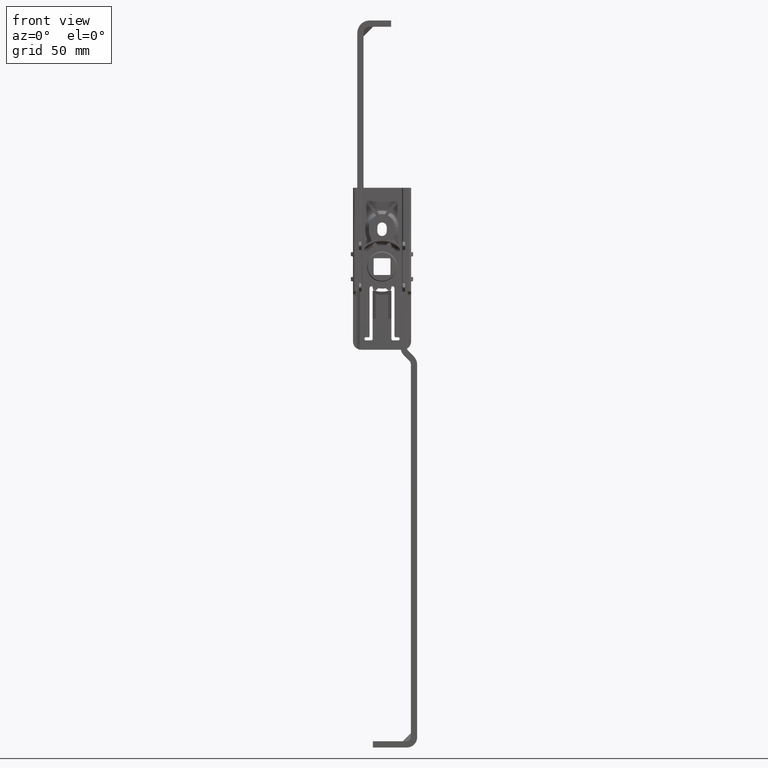
[diagram: clean part render]
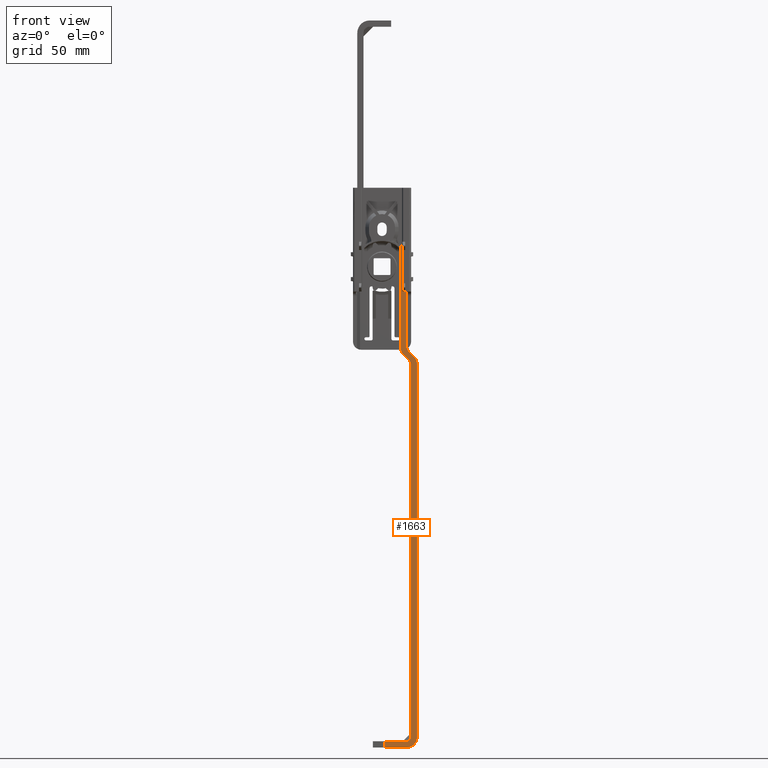
[diagram: same view with one face highlighted and labeled with its STEP entity id]
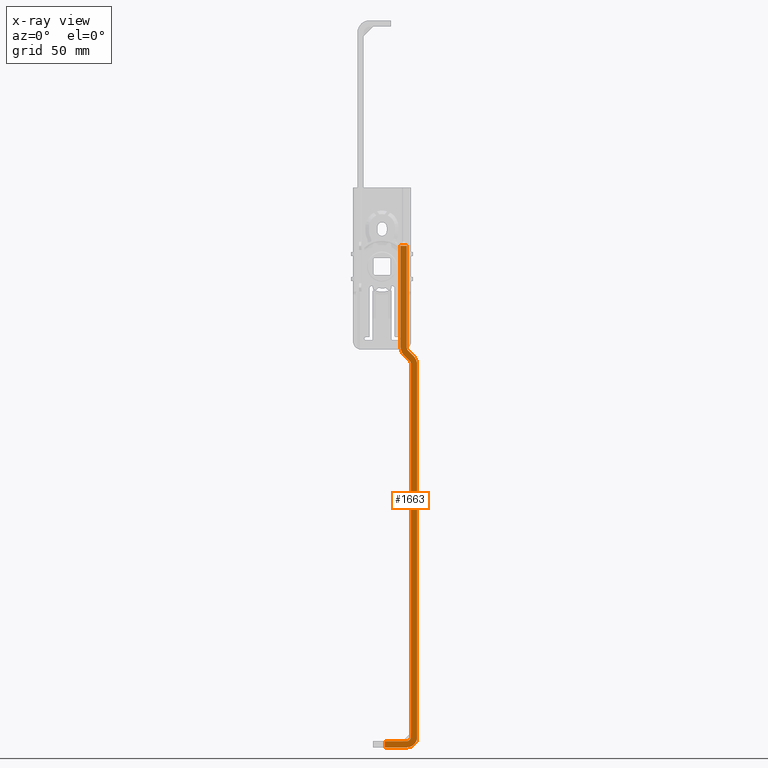
[diagram: x-ray of the same camera — body ghosted, the highlighted face saturated]
A machine part, front view. The second image highlights one B-rep face of the part: STEP entity #1663.
The next image is the same camera in x-ray: the body ghosted, the highlighted face saturated — about 0% of this face is hidden behind the body in this view.
In plain terms, the highlighted face is a freeform B-spline surface patch.
Its self-contained STEP definition (entity closure, byte-faithful):
#769=CARTESIAN_POINT('',(1.399999685026800,-7.000000332482100,-231.700007953401500));
#770=VERTEX_POINT('',#769);
#778=CARTESIAN_POINT('',(1.399999685026800,-7.000000332482160,-228.700007810909000));
#779=VERTEX_POINT('',#778);
#780=CARTESIAN_POINT('',(1.399999685026800,-7.000000332482160,-228.700007810909000));
#781=CARTESIAN_POINT('',(1.399999685026800,-7.000000332482100,-231.700007953401500));
#782=QUASI_UNIFORM_CURVE('',1,(#780,#781),.UNSPECIFIED.,.F.,.U.);
#783=EDGE_CURVE('',#779,#770,#782,.T.);
#1200=CARTESIAN_POINT('',(13.900000278744701,-7.000000332482050,-226.700007715914500));
#1201=VERTEX_POINT('',#1200);
#1207=CARTESIAN_POINT('',(13.900000278744839,-7.000000332482050,-47.299533091249899));
#1208=VERTEX_POINT('',#1207);
#1209=CARTESIAN_POINT('',(13.900000278744839,-7.000000332482050,-47.299533091249899));
#1210=CARTESIAN_POINT('',(13.900000278744701,-7.000000332482050,-226.700007715914500));
#1211=QUASI_UNIFORM_CURVE('',1,(#1209,#1210),.UNSPECIFIED.,.F.,.U.);
#1212=EDGE_CURVE('',#1208,#1201,#1211,.T.);
#1238=CARTESIAN_POINT('',(13.167767196931599,-7.000000332482050,-45.531766054385599));
#1239=VERTEX_POINT('',#1238);
#1240=CARTESIAN_POINT('',(13.900000278744839,-7.000000332482050,-47.299533091249899));
#1241=CARTESIAN_POINT('',(13.900000278744837,-7.000000332482049,-46.263999136159327));
#1242=CARTESIAN_POINT('',(13.167767196931599,-7.000000332482050,-45.531766054385599));
#1250=(BOUNDED_CURVE()B_SPLINE_CURVE(2,(#1240,#1241,#1242),.UNSPECIFIED.,.F.,.U.)CURVE()GEOMETRIC_REPRESENTATION_ITEM()QUASI_UNIFORM_CURVE()RATIONAL_B_SPLINE_CURVE((1.0,0.923879532514821,1.0))REPRESENTATION_ITEM(''));
#1251=EDGE_CURVE('',#1208,#1239,#1250,.T.);
#1268=CARTESIAN_POINT('',(10.510912821282799,-7.000000332482050,-42.874911678654463));
#1269=VERTEX_POINT('',#1268);
#1270=CARTESIAN_POINT('',(10.510912821282799,-7.000000332482050,-42.874911678654463));
#1271=CARTESIAN_POINT('',(13.167767196931599,-7.000000332482050,-45.531766054385599));
#1272=QUASI_UNIFORM_CURVE('',1,(#1270,#1271),.UNSPECIFIED.,.F.,.U.);
#1273=EDGE_CURVE('',#1269,#1239,#1272,.T.);
#1299=CARTESIAN_POINT('',(8.900000041257700,-7.000000332482050,-38.985824197370142));
#1300=VERTEX_POINT('',#1299);
#1301=CARTESIAN_POINT('',(8.900000041257741,-7.000000332482050,-38.985824197370142));
#1302=CARTESIAN_POINT('',(8.900000041257741,-7.000000332482050,-41.263998898660049));
#1303=CARTESIAN_POINT('',(10.510912821282780,-7.000000332482050,-42.874911678654477));
#1311=(BOUNDED_CURVE()B_SPLINE_CURVE(2,(#1301,#1302,#1303),.UNSPECIFIED.,.F.,.U.)CURVE()GEOMETRIC_REPRESENTATION_ITEM()QUASI_UNIFORM_CURVE()RATIONAL_B_SPLINE_CURVE((1.0,0.923879532509469,1.0))REPRESENTATION_ITEM(''));
#1312=EDGE_CURVE('',#1300,#1269,#1311,.T.);
#1329=CARTESIAN_POINT('',(8.900000041257700,-7.000000332482050,9.800003526732370));
#1330=VERTEX_POINT('',#1329);
#1331=CARTESIAN_POINT('',(8.900000041257700,-7.000000332482050,9.800003526732370));
#1332=CARTESIAN_POINT('',(8.900000041257700,-7.000000332482050,-38.985824197370142));
#1333=QUASI_UNIFORM_CURVE('',1,(#1331,#1332),.UNSPECIFIED.,.F.,.U.);
#1334=EDGE_CURVE('',#1330,#1300,#1333,.T.);
#1381=CARTESIAN_POINT('',(11.900000183749800,-7.000000332482050,9.800003526732860));
#1382=VERTEX_POINT('',#1381);
#1383=CARTESIAN_POINT('',(11.900000183749800,-7.000000332482050,9.800003526732860));
#1384=CARTESIAN_POINT('',(8.900000041257700,-7.000000332482050,9.800003526732370));
#1385=QUASI_UNIFORM_CURVE('',1,(#1383,#1384),.UNSPECIFIED.,.F.,.U.);
#1386=EDGE_CURVE('',#1382,#1330,#1385,.T.);
#1403=CARTESIAN_POINT('',(11.900000183749899,-7.000000332482050,-38.985824197369887));
#1404=VERTEX_POINT('',#1403);
#1405=CARTESIAN_POINT('',(11.900000183749899,-7.000000332482050,-38.985824197369887));
#1406=CARTESIAN_POINT('',(11.900000183749800,-7.000000332482050,9.800003526732860));
#1407=QUASI_UNIFORM_CURVE('',1,(#1405,#1406),.UNSPECIFIED.,.F.,.U.);
#1408=EDGE_CURVE('',#1404,#1382,#1407,.T.);
#1464=CARTESIAN_POINT('',(12.632233265563100,-7.000000332482050,-40.753591234334550));
#1465=VERTEX_POINT('',#1464);
#1466=CARTESIAN_POINT('',(11.900000183749899,-7.000000332482050,-38.985824197369887));
#1467=CARTESIAN_POINT('',(11.900000183749890,-7.000000332482050,-40.021358152502188));
#1468=CARTESIAN_POINT('',(12.632233265563100,-7.000000332482050,-40.753591234334550));
#1476=(BOUNDED_CURVE()B_SPLINE_CURVE(2,(#1466,#1467,#1468),.UNSPECIFIED.,.F.,.U.)CURVE()GEOMETRIC_REPRESENTATION_ITEM()QUASI_UNIFORM_CURVE()RATIONAL_B_SPLINE_CURVE((1.0,0.923879532509430,1.0))REPRESENTATION_ITEM(''));
#1477=EDGE_CURVE('',#1404,#1465,#1476,.T.);
#1494=CARTESIAN_POINT('',(15.289087641261849,-7.000000332482050,-43.410445610015003));
#1495=VERTEX_POINT('',#1494);
#1496=CARTESIAN_POINT('',(15.289087641261849,-7.000000332482050,-43.410445610015003));
#1497=CARTESIAN_POINT('',(12.632233265563100,-7.000000332482050,-40.753591234334550));
#1498=QUASI_UNIFORM_CURVE('',1,(#1496,#1497),.UNSPECIFIED.,.F.,.U.);
#1499=EDGE_CURVE('',#1495,#1465,#1498,.T.);
#1525=CARTESIAN_POINT('',(16.900000421237099,-7.000000332482050,-47.299533091249700));
#1526=VERTEX_POINT('',#1525);
#1527=CARTESIAN_POINT('',(16.900000421237241,-7.000000332482050,-47.299533091249700));
#1528=CARTESIAN_POINT('',(16.900000421237241,-7.000000332482050,-45.021358390000906));
#1529=CARTESIAN_POINT('',(15.289087641261849,-7.000000332482050,-43.410445610015010));
#1537=(BOUNDED_CURVE()B_SPLINE_CURVE(2,(#1527,#1528,#1529),.UNSPECIFIED.,.F.,.U.)CURVE()GEOMETRIC_REPRESENTATION_ITEM()QUASI_UNIFORM_CURVE()RATIONAL_B_SPLINE_CURVE((1.0,0.923879532511911,1.0))REPRESENTATION_ITEM(''));
#1538=EDGE_CURVE('',#1526,#1495,#1537,.T.);
#1563=CARTESIAN_POINT('',(16.900000421237252,-7.000000332482050,-226.700007715914500));
#1564=VERTEX_POINT('',#1563);
#1565=CARTESIAN_POINT('',(16.900000421237252,-7.000000332482050,-226.700007715914500));
#1566=CARTESIAN_POINT('',(16.900000421237099,-7.000000332482050,-47.299533091249700));
#1567=QUASI_UNIFORM_CURVE('',1,(#1565,#1566),.UNSPECIFIED.,.F.,.U.);
#1568=EDGE_CURVE('',#1564,#1526,#1567,.T.);
#1604=CARTESIAN_POINT('',(0.625774733671986,-7.000000332482100,21.862928632091680));
#1605=CARTESIAN_POINT('',(17.674224679688031,-7.000000332482100,21.862928632091680));
#1606=CARTESIAN_POINT('',(0.625774733671986,-7.000000332482100,-243.762939536295390));
#1607=CARTESIAN_POINT('',(17.674224679688031,-7.000000332482100,-243.762939536295390));
#1608=B_SPLINE_SURFACE_WITH_KNOTS('',1,1,((#1604,#1606),(#1605,#1607)),.UNSPECIFIED.,.F.,.F.,.U.,(2,2),(2,2),(0.0,17.048449946016049),(0.0,265.625868168387110),.UNSPECIFIED.);
#1609=CARTESIAN_POINT('',(11.900000183750000,-7.000000332482050,-228.700007810909000));
#1610=VERTEX_POINT('',#1609);
#1611=CARTESIAN_POINT('',(11.900000183750000,-7.000000332482050,-228.700007810909000));
#1612=CARTESIAN_POINT('',(1.399999685026800,-7.000000332482160,-228.700007810909000));
#1613=QUASI_UNIFORM_CURVE('',1,(#1611,#1612),.UNSPECIFIED.,.F.,.U.);
#1614=EDGE_CURVE('',#1610,#779,#1613,.T.);
#1615=ORIENTED_EDGE('',*,*,#1614,.T.);
#1616=ORIENTED_EDGE('',*,*,#783,.T.);
#1617=CARTESIAN_POINT('',(11.900000183750000,-7.000000332482050,-231.700007953401500));
#1618=VERTEX_POINT('',#1617);
#1619=CARTESIAN_POINT('',(1.399999685026800,-7.000000332482100,-231.700007953401500));
#1620=CARTESIAN_POINT('',(11.900000183750000,-7.000000332482050,-231.700007953401500));
#1621=QUASI_UNIFORM_CURVE('',1,(#1619,#1620),.UNSPECIFIED.,.F.,.U.);
#1622=EDGE_CURVE('',#770,#1618,#1621,.T.);
#1623=ORIENTED_EDGE('',*,*,#1622,.T.);
#1624=CARTESIAN_POINT('',(11.900000183750000,-7.000000332482050,-231.700007953401810));
#1625=CARTESIAN_POINT('',(16.900000421237266,-7.000000332482050,-231.700007953401780));
#1626=CARTESIAN_POINT('',(16.900000421237259,-7.000000332482050,-226.700007715914500));
#1634=(BOUNDED_CURVE()B_SPLINE_CURVE(2,(#1624,#1625,#1626),.UNSPECIFIED.,.F.,.U.)CURVE()GEOMETRIC_REPRESENTATION_ITEM()QUASI_UNIFORM_CURVE()RATIONAL_B_SPLINE_CURVE((1.0,0.707106781186548,1.0))REPRESENTATION_ITEM(''));
#1635=EDGE_CURVE('',#1618,#1564,#1634,.T.);
#1636=ORIENTED_EDGE('',*,*,#1635,.T.);
#1637=ORIENTED_EDGE('',*,*,#1568,.T.);
#1638=ORIENTED_EDGE('',*,*,#1538,.T.);
#1639=ORIENTED_EDGE('',*,*,#1499,.T.);
#1640=ORIENTED_EDGE('',*,*,#1477,.F.);
#1641=ORIENTED_EDGE('',*,*,#1408,.T.);
#1642=ORIENTED_EDGE('',*,*,#1386,.T.);
#1643=ORIENTED_EDGE('',*,*,#1334,.T.);
#1644=ORIENTED_EDGE('',*,*,#1312,.T.);
#1645=ORIENTED_EDGE('',*,*,#1273,.T.);
#1646=ORIENTED_EDGE('',*,*,#1251,.F.);
#1647=ORIENTED_EDGE('',*,*,#1212,.T.);
#1648=CARTESIAN_POINT('',(11.900000183750000,-7.000000332482050,-228.700007810909400));
#1649=CARTESIAN_POINT('',(13.900000278744907,-7.000000332482050,-228.700007810909510));
#1650=CARTESIAN_POINT('',(13.900000278744910,-7.000000332482050,-226.700007715914500));
#1658=(BOUNDED_CURVE()B_SPLINE_CURVE(2,(#1648,#1649,#1650),.UNSPECIFIED.,.F.,.U.)CURVE()GEOMETRIC_REPRESENTATION_ITEM()QUASI_UNIFORM_CURVE()RATIONAL_B_SPLINE_CURVE((1.0,0.707106781186548,1.0))REPRESENTATION_ITEM(''));
#1659=EDGE_CURVE('',#1610,#1201,#1658,.T.);
#1660=ORIENTED_EDGE('',*,*,#1659,.F.);
#1661=EDGE_LOOP('',(#1615,#1616,#1623,#1636,#1637,#1638,#1639,#1640,#1641,#1642,#1643,#1644,#1645,#1646,#1647,#1660));
#1662=FACE_OUTER_BOUND('',#1661,.T.);
#1663=ADVANCED_FACE('',(#1662),#1608,.F.);